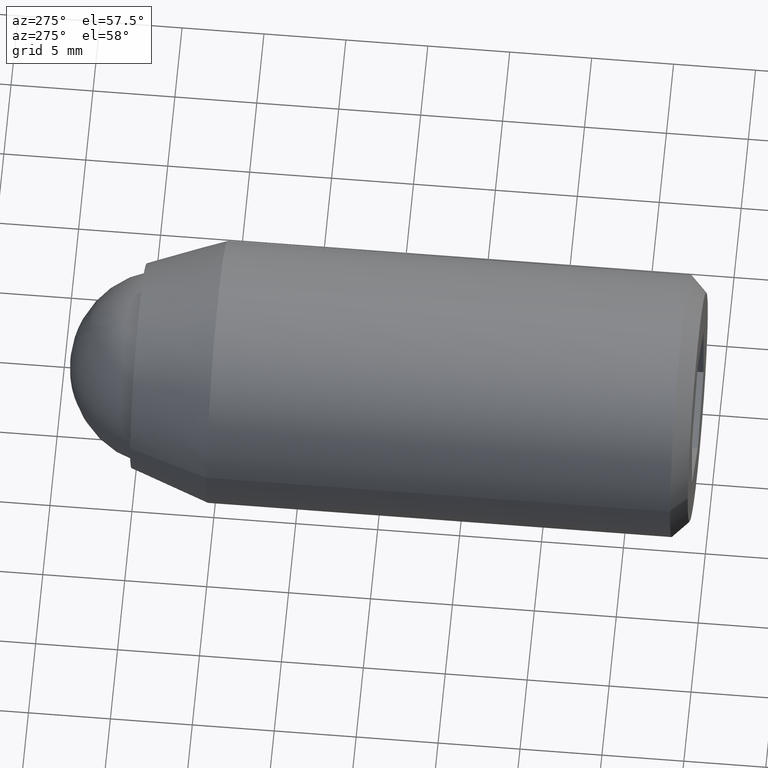
[diagram: clean part render]
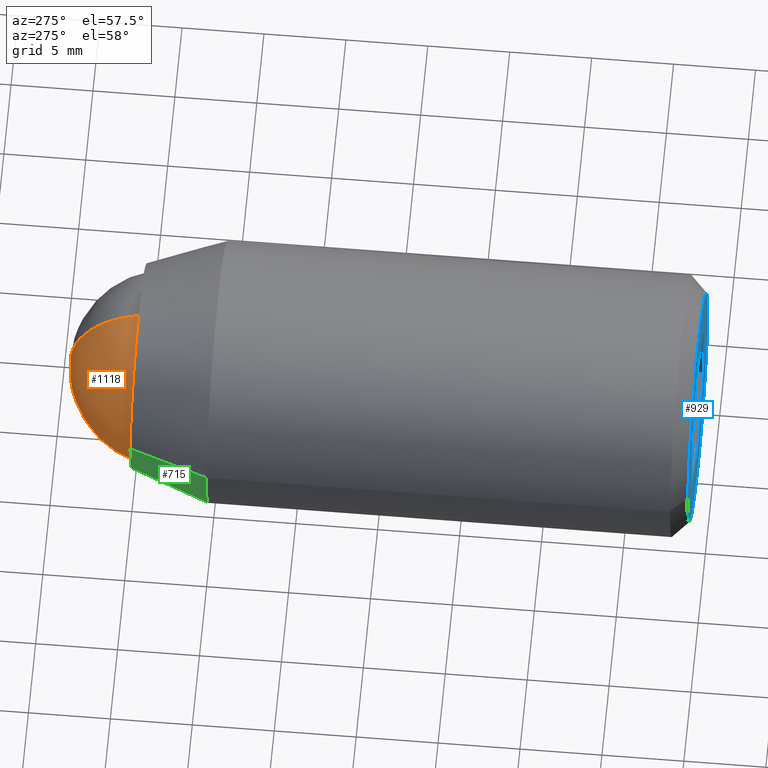
[diagram: same view with three faces highlighted in distinct colors, each labeled with its STEP entity id]
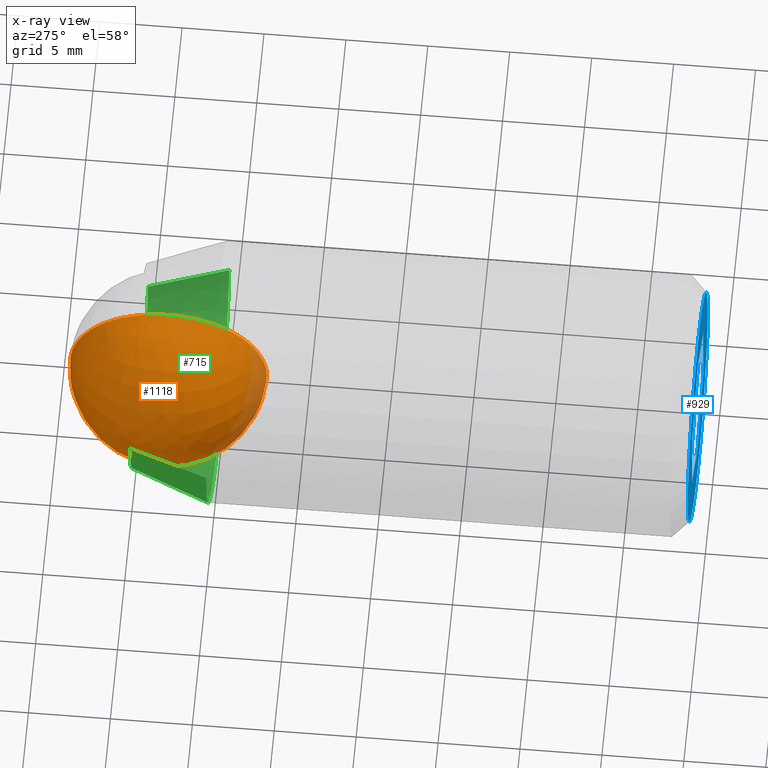
[diagram: x-ray of the same camera — body ghosted, the three highlighted faces saturated]
A machine part, auxiliary view with three faces highlighted in distinct colors.
The next image is the same camera in x-ray (body ghosted, the three faces saturated) — at least one of them is partly hidden behind the body in this view.
Their STEP definitions:

[orange] entity #1118 — the highlighted face is a freeform B-spline surface patch.
#1033=CARTESIAN_POINT('',(0.0,4.200000000000000,1.181745E-015));
#1034=VERTEX_POINT('',#1033);
#1035=CARTESIAN_POINT('',(0.0,-7.800000000000000,1.181745E-015));
#1036=VERTEX_POINT('',#1035);
#1037=CARTESIAN_POINT('',(0.0,4.200000000000000,1.181745E-015));
#1038=CARTESIAN_POINT('',(0.0,4.200000000000000,6.0));
#1039=CARTESIAN_POINT('',(0.0,-1.800000000000000,6.000000000000001));
#1040=CARTESIAN_POINT('',(0.0,-7.800000000000001,6.0));
#1041=CARTESIAN_POINT('',(0.0,-7.800000000000000,1.181745E-015));
#1049=(BOUNDED_CURVE()B_SPLINE_CURVE(2,(#1037,#1038,#1039,#1040,#1041),.UNSPECIFIED.,.F.,.U.)B_SPLINE_CURVE_WITH_KNOTS((3,2,3),(0.0,0.500000000000000,1.0),.UNSPECIFIED.)CURVE()GEOMETRIC_REPRESENTATION_ITEM()RATIONAL_B_SPLINE_CURVE((1.0,0.707106781186548,1.0,0.707106781186548,1.0))REPRESENTATION_ITEM(''));
#1050=EDGE_CURVE('',#1034,#1036,#1049,.T.);
#1052=CARTESIAN_POINT('',(0.0,4.200000000000000,1.181745E-015));
#1053=CARTESIAN_POINT('',(0.0,4.200000000000000,-5.999999999999999));
#1054=CARTESIAN_POINT('',(0.0,-1.800000000000000,-5.999999999999999));
#1055=CARTESIAN_POINT('',(0.0,-7.800000000000001,-5.999999999999999));
#1056=CARTESIAN_POINT('',(0.0,-7.800000000000000,1.181745E-015));
#1064=(BOUNDED_CURVE()B_SPLINE_CURVE(2,(#1052,#1053,#1054,#1055,#1056),.UNSPECIFIED.,.F.,.U.)B_SPLINE_CURVE_WITH_KNOTS((3,2,3),(0.0,0.500000000000000,1.0),.UNSPECIFIED.)CURVE()GEOMETRIC_REPRESENTATION_ITEM()RATIONAL_B_SPLINE_CURVE((1.0,0.707106781186548,1.0,0.707106781186548,1.0))REPRESENTATION_ITEM(''));
#1065=EDGE_CURVE('',#1034,#1036,#1064,.T.);
#1070=CARTESIAN_POINT('',(2.250000000000000,-5.733033180638068,3.933033180638069));
#1071=CARTESIAN_POINT('',(1.471698113207548,-5.361992314540136,4.749323086053517));
#1072=CARTESIAN_POINT('',(0.285714285714286,-3.298298354528788,5.993193418115152));
#1073=CARTESIAN_POINT('',(0.285714285714286,-0.301701645471213,5.993193418115152));
#1074=CARTESIAN_POINT('',(1.471698113207548,1.761992314540136,4.749323086053517));
#1075=CARTESIAN_POINT('',(2.250000000000000,2.133033180638067,3.933033180638069));
#1076=CARTESIAN_POINT('',(1.471698113207548,-6.549323086053517,3.561992314540138));
#1077=CARTESIAN_POINT('',(0.285714285714286,-6.294895063586361,4.494895063586363));
#1078=CARTESIAN_POINT('',(-1.741935483870967,-3.829952609361583,6.089857828084750));
#1079=CARTESIAN_POINT('',(-1.741935483870967,0.229952609361583,6.089857828084750));
#1080=CARTESIAN_POINT('',(0.285714285714286,2.694895063586363,4.494895063586363));
#1081=CARTESIAN_POINT('',(1.471698113207548,2.949323086053516,3.561992314540138));
#1082=CARTESIAN_POINT('',(0.285714285714286,-7.793193418115152,1.498298354528789));
#1083=CARTESIAN_POINT('',(-1.741935483870967,-7.889857828084748,2.029952609361584));
#1084=CARTESIAN_POINT('',(-5.999999999999998,-4.946426544510453,3.146426544510455));
#1085=CARTESIAN_POINT('',(-5.999999999999998,1.346426544510454,3.146426544510455));
#1086=CARTESIAN_POINT('',(-1.741935483870967,4.289857828084750,2.029952609361584));
#1087=CARTESIAN_POINT('',(0.285714285714286,4.193193418115151,1.498298354528789));
#1088=CARTESIAN_POINT('',(0.285714285714286,-7.793193418115152,-1.498298354528786));
#1089=CARTESIAN_POINT('',(-1.741935483870967,-7.889857828084748,-2.029952609361581));
#1090=CARTESIAN_POINT('',(-5.999999999999998,-4.946426544510453,-3.146426544510452));
#1091=CARTESIAN_POINT('',(-5.999999999999998,1.346426544510454,-3.146426544510452));
#1092=CARTESIAN_POINT('',(-1.741935483870967,4.289857828084750,-2.029952609361581));
#1093=CARTESIAN_POINT('',(0.285714285714286,4.193193418115151,-1.498298354528786));
#1094=CARTESIAN_POINT('',(1.471698113207548,-6.549323086053517,-3.561992314540135));
#1095=CARTESIAN_POINT('',(0.285714285714286,-6.294895063586361,-4.494895063586362));
#1096=CARTESIAN_POINT('',(-1.741935483870967,-3.829952609361583,-6.089857828084748));
#1097=CARTESIAN_POINT('',(-1.741935483870967,0.229952609361583,-6.089857828084748));
#1098=CARTESIAN_POINT('',(0.285714285714286,2.694895063586363,-4.494895063586362));
#1099=CARTESIAN_POINT('',(1.471698113207548,2.949323086053516,-3.561992314540135));
#1100=CARTESIAN_POINT('',(2.250000000000000,-5.733033180638068,-3.933033180638066));
#1101=CARTESIAN_POINT('',(1.471698113207548,-5.361992314540136,-4.749323086053514));
#1102=CARTESIAN_POINT('',(0.285714285714286,-3.298298354528788,-5.993193418115148));
#1103=CARTESIAN_POINT('',(0.285714285714286,-0.301701645471213,-5.993193418115148));
#1104=CARTESIAN_POINT('',(1.471698113207548,1.761992314540136,-4.749323086053514));
#1105=CARTESIAN_POINT('',(2.250000000000000,2.133033180638067,-3.933033180638066));
#1113=(BOUNDED_SURFACE()B_SPLINE_SURFACE(2,2,((#1070,#1076,#1082,#1088,#1094,#1100),(#1071,#1077,#1083,#1089,#1095,#1101),(#1072,#1078,#1084,#1090,#1096,#1102),(#1073,#1079,#1085,#1091,#1097,#1103),(#1074,#1080,#1086,#1092,#1098,#1104),(#1075,#1081,#1087,#1093,#1099,#1105)),.UNSPECIFIED.,.F.,.F.,.U.)B_SPLINE_SURFACE_WITH_KNOTS((3,1,1,1,3),(3,1,1,1,3),(0.0,5.532178539798601,11.064357079597199,16.596535619395802,22.128714159194399),(0.0,5.532178539798601,11.064357079597199,16.596535619395802,22.128714159194399),.UNSPECIFIED.)GEOMETRIC_REPRESENTATION_ITEM()RATIONAL_B_SPLINE_SURFACE(((3.200000000000000,2.650000000000000,2.100000000000000,2.100000000000000,2.650000000000000,3.200000000000000),(2.650000000000000,2.100000000000000,1.550000000000000,1.550000000000000,2.100000000000000,2.650000000000000),(2.100000000000000,1.550000000000000,1.0,1.0,1.550000000000000,2.100000000000000),(2.100000000000000,1.550000000000000,1.0,1.0,1.550000000000000,2.100000000000000),(2.650000000000000,2.100000000000000,1.550000000000000,1.550000000000000,2.100000000000000,2.650000000000000),(3.200000000000000,2.650000000000000,2.100000000000000,2.100000000000000,2.650000000000000,3.200000000000000)))REPRESENTATION_ITEM('')SURFACE());
#1114=ORIENTED_EDGE('',*,*,#1065,.T.);
#1115=ORIENTED_EDGE('',*,*,#1050,.F.);
#1116=EDGE_LOOP('',(#1114,#1115));
#1117=FACE_OUTER_BOUND('',#1116,.T.);
#1118=ADVANCED_FACE('',(#1117),#1113,.T.);

[blue] entity #929 — the highlighted face is a freeform B-spline surface patch.
#484=CARTESIAN_POINT('',(6.978421336134765,-34.099999999992761,-0.549213670150708));
#485=VERTEX_POINT('',#484);
#491=CARTESIAN_POINT('',(0.0,-34.100000000000001,-7.000000000000001));
#492=VERTEX_POINT('',#491);
#493=CARTESIAN_POINT('',(0.0,-34.100000000000001,-7.000000000000001));
#494=CARTESIAN_POINT('',(6.470733441504724,-34.100000000000009,-7.000000000000001));
#495=CARTESIAN_POINT('',(6.978421336134765,-34.099999999992761,-0.549213670150708));
#503=(BOUNDED_CURVE()B_SPLINE_CURVE(2,(#493,#494,#495),.UNSPECIFIED.,.F.,.U.)B_SPLINE_CURVE_WITH_KNOTS((3,3),(0.0,0.236331300630054),.UNSPECIFIED.)CURVE()GEOMETRIC_REPRESENTATION_ITEM()RATIONAL_B_SPLINE_CURVE((1.0,0.723120658608375,0.969723356166153))REPRESENTATION_ITEM(''));
#504=EDGE_CURVE('',#492,#485,#503,.T.);
#506=CARTESIAN_POINT('',(-6.978421336134765,-34.099999999992761,0.549213670150704));
#507=VERTEX_POINT('',#506);
#508=CARTESIAN_POINT('',(-6.978421336134765,-34.099999999992761,0.549213670150704));
#509=CARTESIAN_POINT('',(-7.0,-34.100000000000001,0.275030749109163));
#510=CARTESIAN_POINT('',(-7.0,-34.100000000000001,-1.291960E-015));
#511=CARTESIAN_POINT('',(-6.999999999999999,-34.100000000000001,-7.000000000000002));
#512=CARTESIAN_POINT('',(0.0,-34.100000000000001,-7.000000000000001));
#520=(BOUNDED_CURVE()B_SPLINE_CURVE(2,(#508,#509,#510,#511,#512),.UNSPECIFIED.,.F.,.U.)B_SPLINE_CURVE_WITH_KNOTS((3,2,3),(0.736331300630054,0.750000000000000,1.0),.UNSPECIFIED.)CURVE()GEOMETRIC_REPRESENTATION_ITEM()RATIONAL_B_SPLINE_CURVE((0.969723356166154,0.983986122578172,1.0,0.707106781186547,1.0))REPRESENTATION_ITEM(''));
#521=EDGE_CURVE('',#507,#492,#520,.T.);
#555=CARTESIAN_POINT('',(0.0,-34.100000000000001,6.999999999999999));
#556=VERTEX_POINT('',#555);
#557=CARTESIAN_POINT('',(0.0,-34.100000000000001,6.999999999999999));
#558=CARTESIAN_POINT('',(-6.470733441504764,-34.100000000000001,7.0));
#559=CARTESIAN_POINT('',(-6.978421336134765,-34.099999999992761,0.549213670150704));
#567=(BOUNDED_CURVE()B_SPLINE_CURVE(2,(#557,#558,#559),.UNSPECIFIED.,.F.,.U.)B_SPLINE_CURVE_WITH_KNOTS((3,3),(0.500000000000000,0.736331300630055),.UNSPECIFIED.)CURVE()GEOMETRIC_REPRESENTATION_ITEM()RATIONAL_B_SPLINE_CURVE((1.0,0.723120658608374,0.969723356166156))REPRESENTATION_ITEM(''));
#568=EDGE_CURVE('',#556,#507,#567,.T.);
#570=CARTESIAN_POINT('',(6.978421336134765,-34.099999999992761,-0.549213670150708));
#571=CARTESIAN_POINT('',(7.0,-34.100000000000001,-0.275030749109167));
#572=CARTESIAN_POINT('',(7.0,-34.100000000000001,-1.291960E-015));
#573=CARTESIAN_POINT('',(6.999999999999999,-34.100000000000001,6.999999999999999));
#574=CARTESIAN_POINT('',(0.0,-34.100000000000001,6.999999999999999));
#582=(BOUNDED_CURVE()B_SPLINE_CURVE(2,(#570,#571,#572,#573,#574),.UNSPECIFIED.,.F.,.U.)B_SPLINE_CURVE_WITH_KNOTS((3,2,3),(0.236331300630054,0.250000000000000,0.500000000000000),.UNSPECIFIED.)CURVE()GEOMETRIC_REPRESENTATION_ITEM()RATIONAL_B_SPLINE_CURVE((0.969723356166153,0.983986122578172,1.0,0.707106781186547,1.0))REPRESENTATION_ITEM(''));
#583=EDGE_CURVE('',#485,#556,#582,.T.);
#783=CARTESIAN_POINT('',(4.0,-34.100000000000001,2.309401000000000));
#784=VERTEX_POINT('',#783);
#785=CARTESIAN_POINT('',(0.0,-34.100000000000001,4.618802000000000));
#786=VERTEX_POINT('',#785);
#787=CARTESIAN_POINT('',(4.0,-34.100000000000001,2.309401000000000));
#788=CARTESIAN_POINT('',(0.0,-34.100000000000001,4.618802000000000));
#789=QUASI_UNIFORM_CURVE('',1,(#787,#788),.UNSPECIFIED.,.F.,.U.);
#790=EDGE_CURVE('',#784,#786,#789,.T.);
#811=CARTESIAN_POINT('',(4.0,-34.100000000000001,-2.309401000000000));
#812=VERTEX_POINT('',#811);
#813=CARTESIAN_POINT('',(4.0,-34.100000000000001,-2.309401000000000));
#814=CARTESIAN_POINT('',(4.0,-34.100000000000001,2.309401000000000));
#815=QUASI_UNIFORM_CURVE('',1,(#813,#814),.UNSPECIFIED.,.F.,.U.);
#816=EDGE_CURVE('',#812,#784,#815,.T.);
#833=CARTESIAN_POINT('',(0.0,-34.100000000000001,-4.618802000000000));
#834=VERTEX_POINT('',#833);
#835=CARTESIAN_POINT('',(0.0,-34.100000000000001,-4.618802000000000));
#836=CARTESIAN_POINT('',(4.0,-34.100000000000001,-2.309401000000000));
#837=QUASI_UNIFORM_CURVE('',1,(#835,#836),.UNSPECIFIED.,.F.,.U.);
#838=EDGE_CURVE('',#834,#812,#837,.T.);
#855=CARTESIAN_POINT('',(-4.0,-34.100000000000001,-2.309401000000000));
#856=VERTEX_POINT('',#855);
#857=CARTESIAN_POINT('',(-4.0,-34.100000000000001,-2.309401000000000));
#858=CARTESIAN_POINT('',(0.0,-34.100000000000001,-4.618802000000000));
#859=QUASI_UNIFORM_CURVE('',1,(#857,#858),.UNSPECIFIED.,.F.,.U.);
#860=EDGE_CURVE('',#856,#834,#859,.T.);
#877=CARTESIAN_POINT('',(-4.0,-34.100000000000001,2.309401000000000));
#878=VERTEX_POINT('',#877);
#879=CARTESIAN_POINT('',(-4.0,-34.100000000000001,2.309401000000000));
#880=CARTESIAN_POINT('',(-4.0,-34.100000000000001,-2.309401000000000));
#881=QUASI_UNIFORM_CURVE('',1,(#879,#880),.UNSPECIFIED.,.F.,.U.);
#882=EDGE_CURVE('',#878,#856,#881,.T.);
#899=CARTESIAN_POINT('',(0.0,-34.100000000000001,4.618802000000000));
#900=CARTESIAN_POINT('',(-4.0,-34.100000000000001,2.309401000000000));
#901=QUASI_UNIFORM_CURVE('',1,(#899,#900),.UNSPECIFIED.,.F.,.U.);
#902=EDGE_CURVE('',#786,#878,#901,.T.);
#910=CARTESIAN_POINT('',(-7.697163269087954,-34.100000000000001,7.699299972865284));
#911=CARTESIAN_POINT('',(-7.697163269087954,-34.100000000000001,-7.699300348374545));
#912=CARTESIAN_POINT('',(7.697163644597218,-34.100000000000001,7.699299972865284));
#913=CARTESIAN_POINT('',(7.697163644597218,-34.100000000000001,-7.699300348374545));
#914=B_SPLINE_SURFACE_WITH_KNOTS('',1,1,((#910,#912),(#911,#913)),.UNSPECIFIED.,.F.,.F.,.U.,(2,2),(2,2),(0.0,15.398600321239829),(0.0,15.394326913685180),.UNSPECIFIED.);
#915=ORIENTED_EDGE('',*,*,#504,.T.);
#916=ORIENTED_EDGE('',*,*,#583,.T.);
#917=ORIENTED_EDGE('',*,*,#568,.T.);
#918=ORIENTED_EDGE('',*,*,#521,.T.);
#919=EDGE_LOOP('',(#915,#916,#917,#918));
#920=FACE_OUTER_BOUND('',#919,.T.);
#921=ORIENTED_EDGE('',*,*,#902,.F.);
#922=ORIENTED_EDGE('',*,*,#790,.F.);
#923=ORIENTED_EDGE('',*,*,#816,.F.);
#924=ORIENTED_EDGE('',*,*,#838,.F.);
#925=ORIENTED_EDGE('',*,*,#860,.F.);
#926=ORIENTED_EDGE('',*,*,#882,.F.);
#927=EDGE_LOOP('',(#921,#922,#923,#924,#925,#926));
#928=FACE_BOUND('',#927,.T.);
#929=ADVANCED_FACE('',(#920,#928),#914,.T.);

[green] entity #715 — the highlighted face is a freeform B-spline surface patch.
#277=CARTESIAN_POINT('',(-1.874588911887099,-4.808085999999999,-7.777269212996934));
#278=VERTEX_POINT('',#277);
#284=CARTESIAN_POINT('',(0.0,-4.808085999999999,-8.000000000000002));
#285=VERTEX_POINT('',#284);
#286=CARTESIAN_POINT('',(-1.874588911887098,-4.808085999999999,-7.777269212996934));
#287=CARTESIAN_POINT('',(-0.950526424610946,-4.808086000000000,-8.000000000000002));
#288=CARTESIAN_POINT('',(0.0,-4.808085999999999,-8.000000000000002));
#296=(BOUNDED_CURVE()B_SPLINE_CURVE(2,(#286,#287,#288),.UNSPECIFIED.,.F.,.U.)B_SPLINE_CURVE_WITH_KNOTS((3,3),(0.959962709885954,1.0),.UNSPECIFIED.)CURVE()GEOMETRIC_REPRESENTATION_ITEM()RATIONAL_B_SPLINE_CURVE((0.921210900018876,0.953093396903717,1.0))REPRESENTATION_ITEM(''));
#297=EDGE_CURVE('',#278,#285,#296,.T.);
#299=CARTESIAN_POINT('',(7.944075781646310,-4.808084164397428,-0.944271828332837));
#300=VERTEX_POINT('',#299);
#301=CARTESIAN_POINT('',(0.0,-4.808085999999999,-8.000000000000002));
#302=CARTESIAN_POINT('',(7.105397650375080,-4.808085082198716,-7.999999960570460));
#303=CARTESIAN_POINT('',(7.944075781646310,-4.808084164397428,-0.944271828332837));
#311=(BOUNDED_CURVE()B_SPLINE_CURVE(2,(#301,#302,#303),.UNSPECIFIED.,.F.,.U.)B_SPLINE_CURVE_WITH_KNOTS((3,3),(0.0,0.229562515426989),.UNSPECIFIED.)CURVE()GEOMETRIC_REPRESENTATION_ITEM()RATIONAL_B_SPLINE_CURVE((1.0,0.731050783750706,0.956026836335853))REPRESENTATION_ITEM(''));
#312=EDGE_CURVE('',#285,#300,#311,.T.);
#331=CARTESIAN_POINT('',(-7.985078387374985,-4.808086000002238,0.488388316288034));
#332=VERTEX_POINT('',#331);
#446=CARTESIAN_POINT('',(-7.985078387374985,-4.808086000002238,0.488388316288034));
#447=CARTESIAN_POINT('',(-8.000000000000002,-4.808086000000000,0.244422106400933));
#448=CARTESIAN_POINT('',(-8.0,-4.808085999999999,-1.291960E-015));
#449=CARTESIAN_POINT('',(-8.0,-4.808085999999999,-6.300834825540911));
#450=CARTESIAN_POINT('',(-1.874588911887099,-4.808085999999999,-7.777269212996934));
#458=(BOUNDED_CURVE()B_SPLINE_CURVE(2,(#446,#447,#448,#449,#450),.UNSPECIFIED.,.F.,.U.)B_SPLINE_CURVE_WITH_KNOTS((3,2,3),(0.739332962241442,0.750000000000000,0.959962709885956),.UNSPECIFIED.)CURVE()GEOMETRIC_REPRESENTATION_ITEM()RATIONAL_B_SPLINE_CURVE((0.976072041672073,0.987502787902765,1.0,0.754013384282830,0.921210900018878))REPRESENTATION_ITEM(''));
#459=EDGE_CURVE('',#332,#278,#458,.T.);
#611=CARTESIAN_POINT('',(6.206309539772297,-2.303983E-012,-0.737713966617037));
#612=VERTEX_POINT('',#611);
#630=CARTESIAN_POINT('',(-6.238341227741394,0.000004335775099,0.381548162198238));
#631=VERTEX_POINT('',#630);
#645=CARTESIAN_POINT('',(-6.238341227741394,0.000004335775099,0.381548162198238));
#646=CARTESIAN_POINT('',(-7.985078387374985,-4.808086000002238,0.488388316288034));
#647=QUASI_UNIFORM_CURVE('',1,(#645,#646),.UNSPECIFIED.,.F.,.U.);
#648=EDGE_CURVE('',#631,#332,#647,.T.);
#652=CARTESIAN_POINT('',(6.206309539772297,-2.303983E-012,-0.737713966617037));
#653=CARTESIAN_POINT('',(7.944075781646310,-4.808084164397428,-0.944271828332837));
#654=QUASI_UNIFORM_CURVE('',1,(#652,#653),.UNSPECIFIED.,.F.,.U.);
#655=EDGE_CURVE('',#612,#300,#654,.T.);
#660=CARTESIAN_POINT('',(-6.194674092705709,0.120202150000000,0.378882498488205));
#661=CARTESIAN_POINT('',(-6.573556591193915,0.120202150000000,-5.815791594217505));
#662=CARTESIAN_POINT('',(-0.378882498488206,0.120202150000000,-6.194674092705710));
#663=CARTESIAN_POINT('',(5.471079290022653,0.120202150000000,-6.552473083471249));
#664=CARTESIAN_POINT('',(6.162865372994504,0.120202150000000,-0.732549968838508));
#665=CARTESIAN_POINT('',(-8.029838494741664,-4.931293203750000,0.491125961723621));
#666=CARTESIAN_POINT('',(-8.520964456465288,-4.931293203750001,-7.538712533018043));
#667=CARTESIAN_POINT('',(-0.491125961723622,-4.931293203750000,-8.029838494741666));
#668=CARTESIAN_POINT('',(7.091879642633341,-4.931293203750000,-8.493634986119945));
#669=CARTESIAN_POINT('',(7.988606481857201,-4.931293203750001,-0.949566974964458));
#677=(BOUNDED_SURFACE()B_SPLINE_SURFACE(2,1,((#660,#665),(#661,#666),(#662,#667),(#663,#668),(#664,#669)),.UNSPECIFIED.,.F.,.F.,.U.)B_SPLINE_SURFACE_WITH_KNOTS((3,2,3),(2,2),(0.0,13.329133553689720,26.125101765231840),(0.0,5.375689005745859),.UNSPECIFIED.)GEOMETRIC_REPRESENTATION_ITEM()RATIONAL_B_SPLINE_SURFACE(((1.0,1.0),(0.707106781186548,0.707106781186548),(1.0,1.0),(0.718822509939086,0.718822509939086),(0.977505800795127,0.977505800795127)))REPRESENTATION_ITEM('')SURFACE());
#678=CARTESIAN_POINT('',(0.0,0.0,-6.250000000000001));
#679=VERTEX_POINT('',#678);
#680=CARTESIAN_POINT('',(0.0,0.0,-6.250000000000001));
#681=CARTESIAN_POINT('',(5.551090787174074,0.0,-6.250000000000002));
#682=CARTESIAN_POINT('',(6.206309539772298,-2.303983E-012,-0.737713966617037));
#690=(BOUNDED_CURVE()B_SPLINE_CURVE(2,(#680,#681,#682),.UNSPECIFIED.,.F.,.U.)B_SPLINE_CURVE_WITH_KNOTS((3,3),(0.0,0.229562473514980),.UNSPECIFIED.)CURVE()GEOMETRIC_REPRESENTATION_ITEM()RATIONAL_B_SPLINE_CURVE((1.0,0.731050832853678,0.956026754186584))REPRESENTATION_ITEM(''));
#691=EDGE_CURVE('',#679,#612,#690,.T.);
#692=ORIENTED_EDGE('',*,*,#691,.T.);
#693=ORIENTED_EDGE('',*,*,#655,.T.);
#694=ORIENTED_EDGE('',*,*,#312,.F.);
#695=ORIENTED_EDGE('',*,*,#297,.F.);
#696=ORIENTED_EDGE('',*,*,#459,.F.);
#697=ORIENTED_EDGE('',*,*,#648,.F.);
#698=CARTESIAN_POINT('',(-6.238341227741394,0.000004335775099,0.381548162198238));
#699=CARTESIAN_POINT('',(-6.249998447483940,0.000004273468261,0.190952111714892));
#700=CARTESIAN_POINT('',(-6.249998471546235,0.000004207234195,-0.000000093482978));
#701=CARTESIAN_POINT('',(-6.249999259122045,0.000002039346645,-6.250000045313428));
#702=CARTESIAN_POINT('',(0.0,0.0,-6.250000000000001));
#710=(BOUNDED_CURVE()B_SPLINE_CURVE(2,(#698,#699,#700,#701,#702),.UNSPECIFIED.,.F.,.U.)B_SPLINE_CURVE_WITH_KNOTS((3,2,3),(0.739333103678208,0.750000000000000,1.0),.UNSPECIFIED.)CURVE()GEOMETRIC_REPRESENTATION_ITEM()RATIONAL_B_SPLINE_CURVE((0.976072344798174,0.987502953606244,1.0,0.707106781186547,1.0))REPRESENTATION_ITEM(''));
#711=EDGE_CURVE('',#631,#679,#710,.T.);
#712=ORIENTED_EDGE('',*,*,#711,.T.);
#713=EDGE_LOOP('',(#692,#693,#694,#695,#696,#697,#712));
#714=FACE_OUTER_BOUND('',#713,.T.);
#715=ADVANCED_FACE('',(#714),#677,.T.);